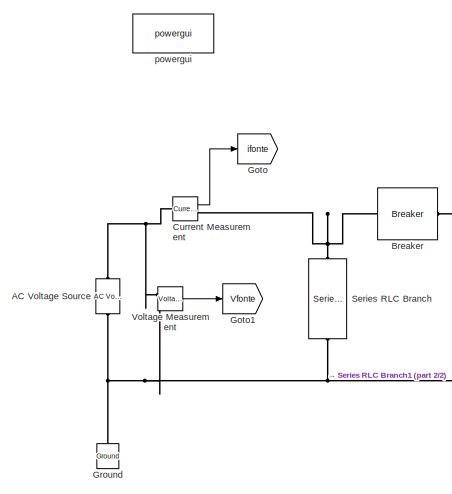
[diagram: root canvas - part 1/2, top left region]
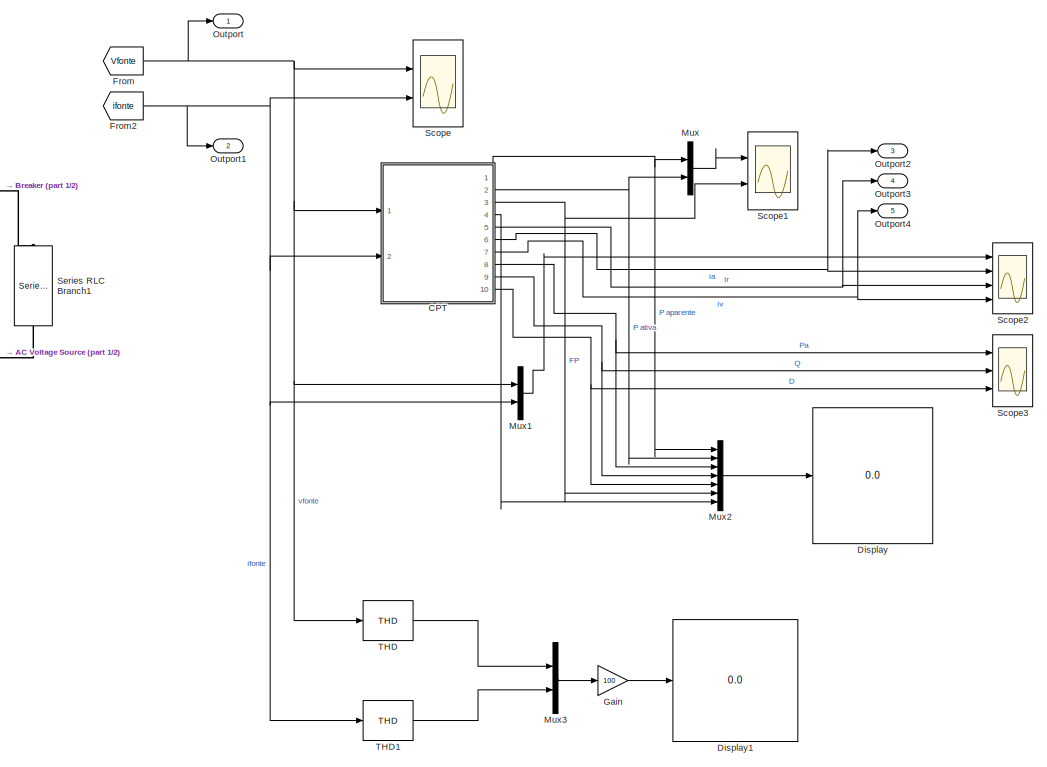
[diagram: root canvas - part 2/2, center side, full height]
MODEL slx_1470fd1767c3
KIND model
CONFIG AbsTol = auto
CONFIG EnableMultiTasking = off
CONFIG FixedStep = auto
CONFIG MaxStep = auto
CONFIG MinStep = auto
CONFIG RelTol = 1e-3
CONFIG SampleTimeConstraint = Unconstrained
CONFIG SolverName = VariableStepAuto
CONFIG StartTime = 0.0
CONFIG StopTime = 1
BLOCK [Reference] AC Voltage Source  REF=spsACVoltageSourceLib/AC Voltage Source
  Ports = [0, 0, 0, 0, 0, 1, 1]
  SourceBlock = spsACVoltageSourceLib/AC Voltage Source
  SourceProductBaseCode = PS
  SourceType = AC Voltage Source
BLOCK [Reference] Breaker  REF=spsBreakerLib/Breaker
  Ports = [0, 0, 0, 0, 0, 1, 1]
  SourceBlock = spsBreakerLib/Breaker
  SourceProductBaseCode = PS
  SourceType = Breaker
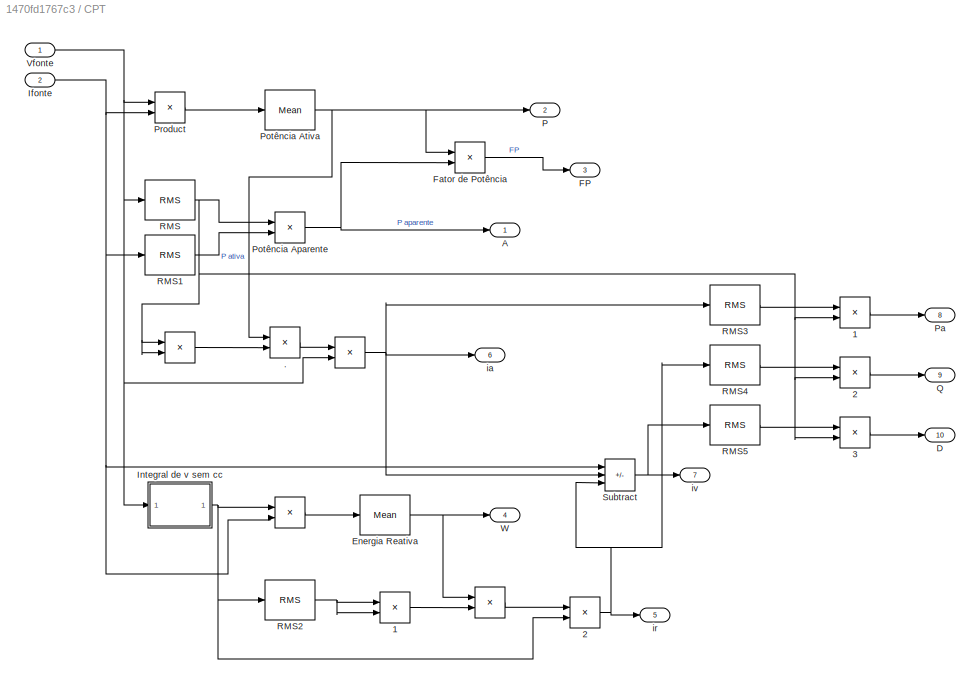
BLOCK [SubSystem] CPT
  Ports = [2, 10]
  RequestExecContextInheritance = off
BLOCK [Product] CPT/  
  Ports = [2, 1]
BLOCK [Product] CPT/   
  Inputs = */
  Ports = [2, 1]
BLOCK [Product] CPT/    
  Ports = [2, 1]
BLOCK [Product] CPT/     
  Ports = [2, 1]
BLOCK [Product] CPT/     1
  Ports = [2, 1]
BLOCK [Product] CPT/     2
  Ports = [2, 1]
BLOCK [Product] CPT/     3
  Ports = [2, 1]
BLOCK [Product] CPT/  1
  Ports = [2, 1]
BLOCK [Product] CPT/  2
  Ports = [2, 1]
BLOCK [Product] CPT/.
  Inputs = */
  Ports = [2, 1]
BLOCK [Outport] CPT/A
BLOCK [Outport] CPT/D
  Port = 10
BLOCK [Reference] CPT/Energia Reativa  REF=spsMeanLib/Mean
  Ports = [1, 1]
  SourceBlock = spsMeanLib/Mean
  SourceProductBaseCode = PS
  SourceType = Mean
BLOCK [Outport] CPT/FP
  Port = 3
BLOCK [Product] CPT/Fator de Potência
  Inputs = */
  Ports = [2, 1]
BLOCK [Inport] CPT/Ifonte
  Port = 2
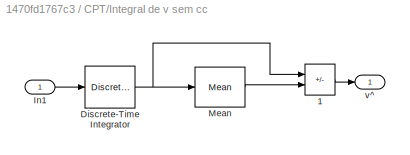
BLOCK [SubSystem] CPT/Integral de v sem cc
  Ports = [1, 1]
  RequestExecContextInheritance = off
BLOCK [Sum] CPT/Integral de v sem cc/1
  IconShape = rectangular
  Inputs = +-
  Ports = [2, 1]
BLOCK [DiscreteIntegrator] CPT/Integral de v sem cc/Discrete-Time Integrator
  ICPrevOutput = DiscIntNeverNeededParam
  ICPrevScaledInput = DiscIntNeverNeededParam
  InitialConditionSetting = Auto
  IntegratorMethod = Integration: Trapezoidal
  Ports = [1, 1]
  SampleTime = 1/12000
BLOCK [Inport] CPT/Integral de v sem cc/In1
BLOCK [Reference] CPT/Integral de v sem cc/Mean  REF=spsMeanLib/Mean
  Ports = [1, 1]
  SourceBlock = spsMeanLib/Mean
  SourceProductBaseCode = PS
  SourceType = Mean
BLOCK [Outport] CPT/Integral de v sem cc/v^
BLOCK [Outport] CPT/P
  Port = 2
BLOCK [Outport] CPT/Pa
  Port = 8
BLOCK [Product] CPT/Potência Aparente
  Ports = [2, 1]
BLOCK [Reference] CPT/Potência Ativa  REF=spsMeanLib/Mean
  Ports = [1, 1]
  SourceBlock = spsMeanLib/Mean
  SourceProductBaseCode = PS
  SourceType = Mean
BLOCK [Product] CPT/Product
  Ports = [2, 1]
BLOCK [Outport] CPT/Q
  Port = 9
BLOCK [Reference] CPT/RMS  REF=spsRMSLib/RMS
  Ports = [1, 1]
  SourceBlock = spsRMSLib/RMS
  SourceProductBaseCode = PS
  SourceType = RMS
BLOCK [Reference] CPT/RMS1  REF=spsRMSLib/RMS
  Ports = [1, 1]
  SourceBlock = spsRMSLib/RMS
  SourceProductBaseCode = PS
  SourceType = RMS
BLOCK [Reference] CPT/RMS2  REF=spsRMSLib/RMS
  Ports = [1, 1]
  SourceBlock = spsRMSLib/RMS
  SourceProductBaseCode = PS
  SourceType = RMS
BLOCK [Reference] CPT/RMS3  REF=spsRMSLib/RMS
  Ports = [1, 1]
  SourceBlock = spsRMSLib/RMS
  SourceProductBaseCode = PS
  SourceType = RMS
BLOCK [Reference] CPT/RMS4  REF=spsRMSLib/RMS
  Ports = [1, 1]
  SourceBlock = spsRMSLib/RMS
  SourceProductBaseCode = PS
  SourceType = RMS
BLOCK [Reference] CPT/RMS5  REF=spsRMSLib/RMS
  Ports = [1, 1]
  SourceBlock = spsRMSLib/RMS
  SourceProductBaseCode = PS
  SourceType = RMS
BLOCK [Sum] CPT/Subtract
  IconShape = rectangular
  Inputs = +--
  Ports = [3, 1]
BLOCK [Inport] CPT/Vfonte
BLOCK [Outport] CPT/W
  Port = 4
BLOCK [Outport] CPT/ia
  Port = 6
BLOCK [Outport] CPT/ir
  Port = 5
BLOCK [Outport] CPT/iv
  Port = 7
BLOCK [Reference] Current Measurement  REF=spsCurrentMeasurementLib/Current Measurement
  Ports = [0, 1, 0, 0, 0, 1, 1]
  SourceBlock = spsCurrentMeasurementLib/Current Measurement
  SourceProductBaseCode = PS
  SourceType = Current Measurement
  UserDataPersistent = on
BLOCK [Display] Display
  Decimation = 1
  Format = long
  Ports = [1]
BLOCK [Display] Display1
  Decimation = 1
  Format = long
  Ports = [1]
BLOCK [From] From
  GotoTag = Vfonte
BLOCK [From] From2
  GotoTag = ifonte
BLOCK [Gain] Gain
  Gain = 100
BLOCK [Goto] Goto
  GotoTag = ifonte
BLOCK [Goto] Goto1
  GotoTag = Vfonte
BLOCK [Reference] Ground  REF=spsGroundLib/Ground
  NameLocation = right
  Ports = [0, 0, 0, 0, 0, 1]
  SourceBlock = spsGroundLib/Ground
  SourceProductBaseCode = PS
  SourceType = Ground
BLOCK [Mux] Mux
  DisplayOption = bar
  Inputs = 2
  Ports = [2, 1]
BLOCK [Mux] Mux1
  DisplayOption = bar
  Inputs = 2
  Ports = [2, 1]
BLOCK [Mux] Mux2
  DisplayOption = bar
  Inputs = 7
  Ports = [7, 1]
BLOCK [Mux] Mux3
  DisplayOption = bar
  Inputs = 2
  Ports = [2, 1]
BLOCK [Outport] Outport
BLOCK [Outport] Outport1
  Port = 2
BLOCK [Outport] Outport2
  Port = 3
BLOCK [Outport] Outport3
  Port = 4
BLOCK [Outport] Outport4
  Port = 5
BLOCK [Scope] Scope
  Floating = off
  NumInputPorts = 2
  Ports = [2]
  ScopeSpecificationString = Simulink.scopes.TimeScopeBlockCfg('CurrentConfiguration', extmgr.ConfigurationSet(extmgr.Configuration('Core','General UI',true),extmgr.Configuration('Core','Source UI',true),extmgr.Configuration('Sources','WiredSimulink',true,'DataLoggingVariableName','ScopeData1'),extmgr.Configuration('Visuals','Time Domain',true,'SerializedDisplays',{struct('MinYLimReal','-224.5064','MaxYLimReal','224.5064','YL...<+1525ch>
BLOCK [Scope] Scope1
  Floating = off
  NumInputPorts = 2
  Ports = [2]
  ScopeSpecificationString = Simulink.scopes.TimeScopeBlockCfg('CurrentConfiguration', extmgr.ConfigurationSet(extmgr.Configuration('Core','General UI',true),extmgr.Configuration('Core','Source UI',true),extmgr.Configuration('Sources','WiredSimulink',true,'DataLoggingVariableName','ScopeData2'),extmgr.Configuration('Visuals','Time Domain',true,'SerializedDisplays',{struct('MinYLimReal','-45.2466','MaxYLimReal','14000','YLabel...<+2022ch>
BLOCK [Scope] Scope2
  Floating = off
  NumInputPorts = 4
  Ports = [4]
  ScopeSpecificationString = Simulink.scopes.TimeScopeBlockCfg('CurrentConfiguration', extmgr.ConfigurationSet(extmgr.Configuration('Core','General UI',true),extmgr.Configuration('Core','Source UI',true),extmgr.Configuration('Sources','WiredSimulink',true,'DataLoggingVariableName','ScopeData3'),extmgr.Configuration('Visuals','Time Domain',true,'SerializedDisplays',{struct('MinYLimReal','-224.5064','MaxYLimReal','224.5064','YL...<+3391ch>
BLOCK [Scope] Scope3
  Floating = off
  NumInputPorts = 3
  Ports = [3]
  ScopeSpecificationString = Simulink.scopes.TimeScopeBlockCfg('CurrentConfiguration', extmgr.ConfigurationSet(extmgr.Configuration('Core','General UI',true,'DisplayFullSourceName',true),extmgr.Configuration('Core','Source UI',true),extmgr.Configuration('Sources','WiredSimulink',true,'SampleTime','1/12000'),extmgr.Configuration('Visuals','Time Domain',true,'SerializedDisplays',{struct('MinYLimReal','-472.96249','MaxYLimReal',...<+2735ch>
BLOCK [Reference] Series RLC Branch  REF=spsSeriesRLCBranchLib/Series RLC Branch
  NameLocation = left
  Ports = [0, 0, 0, 0, 0, 1, 1]
  SourceBlock = spsSeriesRLCBranchLib/Series RLC Branch
  SourceProductBaseCode = PS
  SourceType = Series RLC Branch
BLOCK [Reference] Series RLC Branch1  REF=spsSeriesRLCBranchLib/Series RLC Branch
  NameLocation = left
  Ports = [0, 0, 0, 0, 0, 1, 1]
  SourceBlock = spsSeriesRLCBranchLib/Series RLC Branch
  SourceProductBaseCode = PS
  SourceType = Series RLC Branch
BLOCK [Reference] THD  REF=spsTHDLib/THD
  Ports = [1, 1]
  SourceBlock = spsTHDLib/THD
  SourceProductBaseCode = PS
  SourceType = THD
BLOCK [Reference] THD1  REF=spsTHDLib/THD
  Ports = [1, 1]
  SourceBlock = spsTHDLib/THD
  SourceProductBaseCode = PS
  SourceType = THD
BLOCK [Reference] Voltage Measurement  REF=spsVoltageMeasurementLib/Voltage Measurement
  Ports = [0, 1, 0, 0, 0, 2]
  SourceBlock = spsVoltageMeasurementLib/Voltage Measurement
  SourceProductBaseCode = PS
  SourceType = Voltage Measurement
  UserDataPersistent = on
BLOCK [Reference] powergui  REF=spspowerguiLib/powergui
  Ports = []
  Priority = 1
  SourceBlock = spspowerguiLib/powergui
  SourceProductBaseCode = PS
  SourceType = PSB option menu block
LINE CPT/     1:1 -> CPT/Pa:1
LINE CPT/     2:1 -> CPT/Q:1
LINE CPT/     3:1 -> CPT/D:1
NET CPT/     :1 -> CPT/RMS3:1, CPT/Subtract:2, CPT/ia:1
LINE CPT/    :1 -> CPT/.:2
LINE CPT/   :1 -> CPT/  2:1
LINE CPT/  1:1 -> CPT/   :2
NET CPT/  2:1 -> CPT/RMS4:1, CPT/Subtract:3, CPT/ir:1
LINE CPT/  :1 -> CPT/Energia Reativa:1
LINE CPT/.:1 -> CPT/     :1
NET CPT/Energia Reativa:1 -> CPT/   :1, CPT/W:1
LINE CPT/Fator de Potência:1 -> CPT/FP:1
NET CPT/Ifonte:1 -> CPT/  :2, CPT/Product:2, CPT/RMS1:1, CPT/Subtract:1
LINE CPT/Integral de v sem cc/1:1 -> CPT/Integral de v sem cc/v^:1
NET CPT/Integral de v sem cc/Discrete-Time Integrator:1 -> CPT/Integral de v sem cc/1:1, CPT/Integral de v sem cc/Mean:1
LINE CPT/Integral de v sem cc/In1:1 -> CPT/Integral de v sem cc/Discrete-Time Integrator:1
LINE CPT/Integral de v sem cc/Mean:1 -> CPT/Integral de v sem cc/1:2
NET CPT/Integral de v sem cc:1 -> CPT/  2:2, CPT/  :1, CPT/RMS2:1
NET CPT/Potência Aparente:1 -> CPT/A:1, CPT/Fator de Potência:2
NET CPT/Potência Ativa:1 -> CPT/.:1, CPT/Fator de Potência:1, CPT/P:1
LINE CPT/Product:1 -> CPT/Potência Ativa:1
LINE CPT/RMS1:1 -> CPT/Potência Aparente:2
NET CPT/RMS2:1 -> CPT/  1:1, CPT/  1:2
LINE CPT/RMS3:1 -> CPT/     1:1
LINE CPT/RMS4:1 -> CPT/     2:1
LINE CPT/RMS5:1 -> CPT/     3:1
NET CPT/RMS:1 -> CPT/     1:2, CPT/     2:2, CPT/     3:2, CPT/    :1, CPT/    :2, CPT/Potência Aparente:1
NET CPT/Subtract:1 -> CPT/RMS5:1, CPT/iv:1
NET CPT/Vfonte:1 -> CPT/     :2, CPT/Integral de v sem cc:1, CPT/Product:1, CPT/RMS:1
NET CPT:1 -> Mux2:1, Mux:1
NET CPT:10 -> Mux2:5, Scope3:3
NET CPT:2 -> Mux2:2, Mux:2
NET CPT:3 -> Mux2:6, Scope1:2
LINE CPT:4 -> Mux2:7
NET CPT:5 -> Outport3:1, Scope2:3
NET CPT:6 -> Outport2:1, Scope2:2
NET CPT:7 -> Outport4:1, Scope2:4
NET CPT:8 -> Mux2:3, Scope3:1
NET CPT:9 -> Mux2:4, Scope3:2
LINE Current Measurement:1 -> Goto:1
NET From2:1 -> CPT:2, Mux1:2, Outport1:1, Scope:2, THD1:1
NET From:1 -> CPT:1, Mux1:1, Outport:1, Scope:1, THD:1
LINE Gain:1 -> Display1:1
LINE Mux1:1 -> Scope2:1
LINE Mux2:1 -> Display:1
LINE Mux3:1 -> Gain:1
LINE Mux:1 -> Scope1:1
LINE THD1:1 -> Mux3:2
LINE THD:1 -> Mux3:1
LINE Voltage Measurement:1 -> Goto1:1
PNET net1: AC Voltage Source:LConn1 -- Ground:LConn1 -- Series RLC Branch1:RConn1 -- Series RLC Branch:RConn1 -- Voltage Measurement:LConn2
PNET net2: AC Voltage Source:RConn1 -- Current Measurement:LConn1 -- Voltage Measurement:LConn1
PNET net3: Breaker:LConn1 -- Current Measurement:RConn1 -- Series RLC Branch:LConn1
PLINE Breaker:RConn1 -- Series RLC Branch1:LConn1
note: NET lines group one-source signal fan-out (src -> all destinations, sorted); 1:1 wires keep LINE; PNET lines group multi-terminal physical nets as a canonical sorted terminal list (undirected conserving connections); 2-terminal nets keep the pairwise PLINE form
